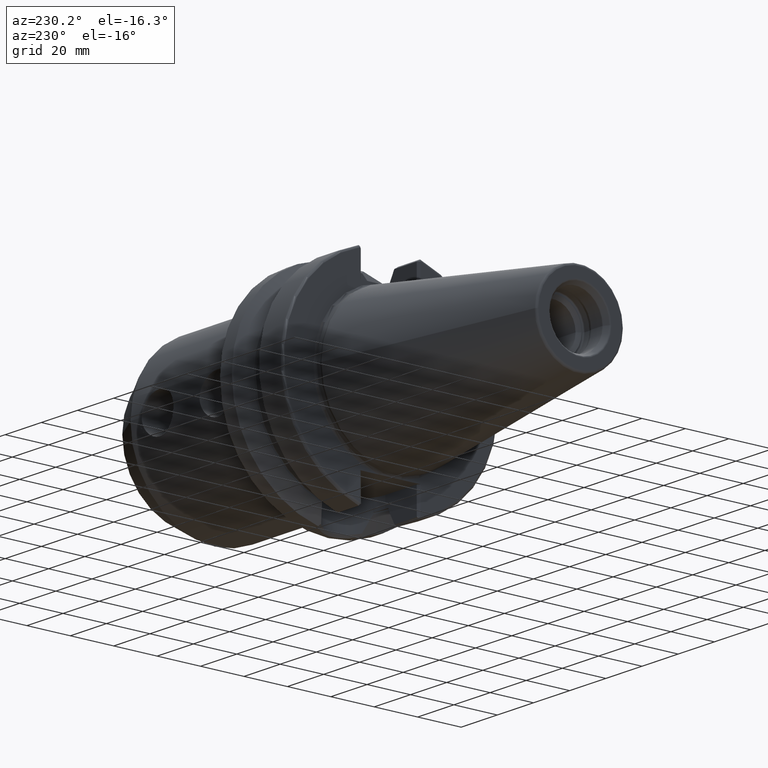
[diagram: clean part render]
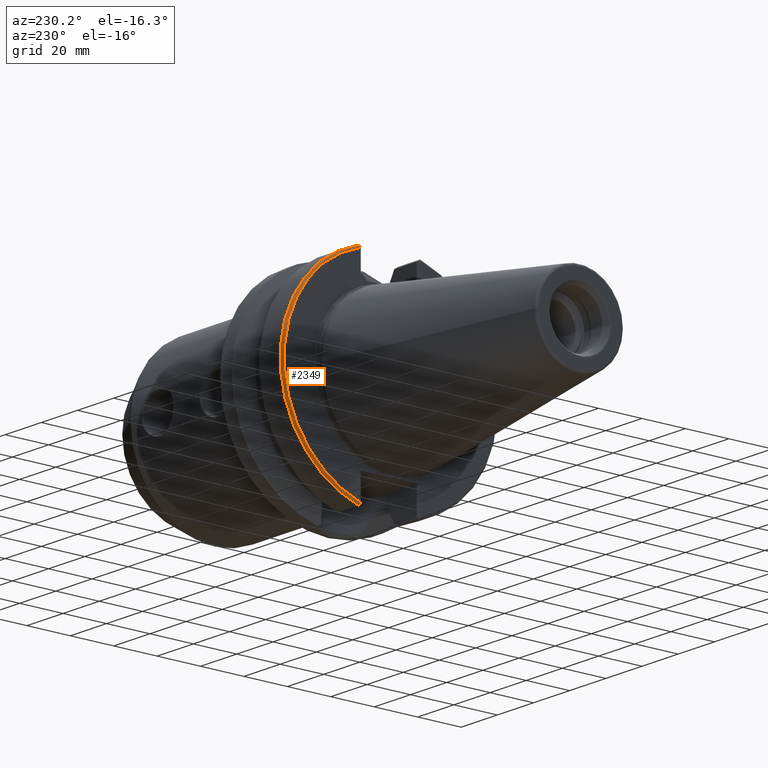
[diagram: same view with one face highlighted and labeled with its STEP entity id]
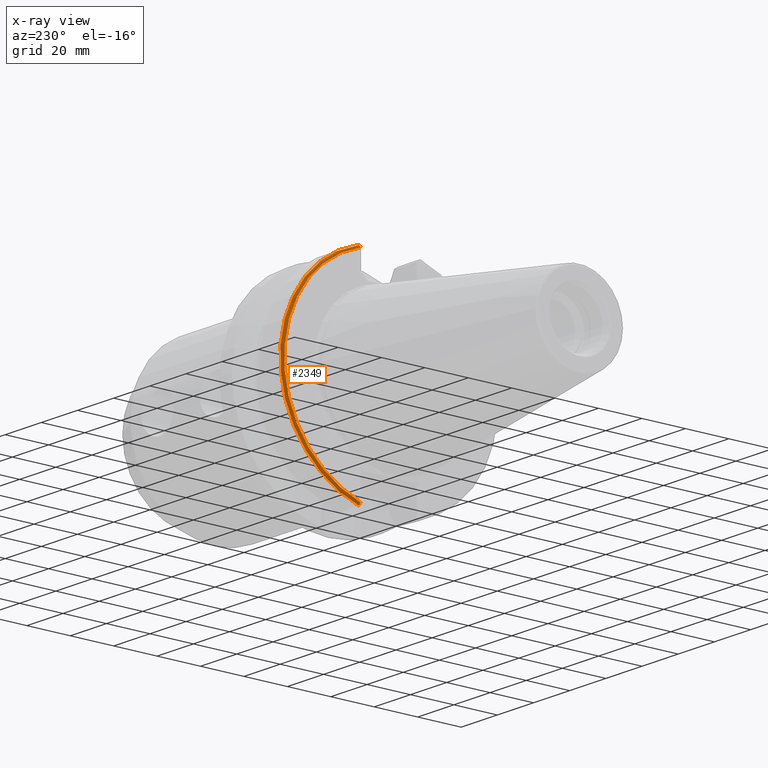
[diagram: x-ray of the same camera — body ghosted, the highlighted face saturated]
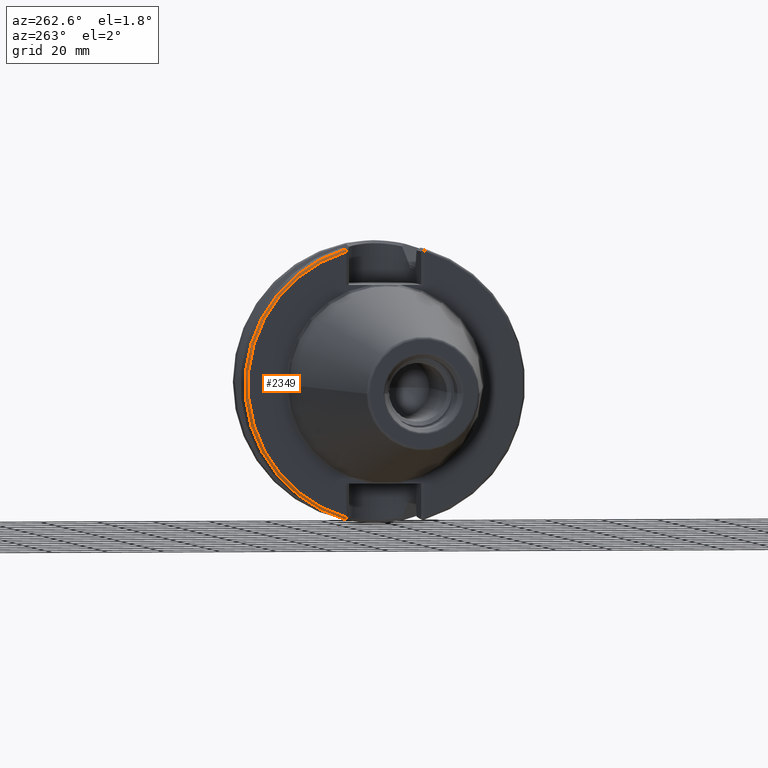
[diagram: same view with one face highlighted and labeled with its STEP entity id]
A machine part, auxiliary view. The second image highlights one B-rep face of the part: STEP entity #2349.
The next image is the same camera in x-ray: the body ghosted, the highlighted face saturated — about 0% of this face is hidden behind the body in this view.
A second angle (auxiliary view) of the same face is appended — the face is thin or edge-on in the first view.
In plain terms, the highlighted toroidal blend (fillet) surface has major radius 48.9875 mm and minor (blend) radius 1 mm.
Its self-contained STEP definition (entity closure, byte-faithful):
#227=CARTESIAN_POINT('',(4.E0,0.E0,0.E0));
#228=DIRECTION('',(-1.E0,0.E0,0.E0));
#229=DIRECTION('',(0.E0,2.837968869610E-1,9.588844179312E-1));
#230=AXIS2_PLACEMENT_3D('',#227,#228,#229);
#571=CARTESIAN_POINT('',(3.999999999701E0,1.386327248661E1,-4.802665840350E1));
#572=CARTESIAN_POINT('',(3.940459880706E0,1.386328759388E1,-4.802665404266E1));
#573=CARTESIAN_POINT('',(3.818524379244E0,1.386408249541E1,-4.801536526032E1));
#574=CARTESIAN_POINT('',(3.632802361895E0,1.386813157488E1,-4.795971866684E1));
#575=CARTESIAN_POINT('',(3.454761225176E0,1.387449273833E1,-4.786347597167E1));
#576=CARTESIAN_POINT('',(3.294931333912E0,1.388240594639E1,-4.772857875800E1));
#577=CARTESIAN_POINT('',(3.162899754239E0,1.389052093324E1,-4.756045881447E1));
#578=CARTESIAN_POINT('',(3.066796699794E0,1.389728433203E1,-4.736907635249E1));
#579=CARTESIAN_POINT('',(3.011034865800E0,1.390161469890E1,-4.716733990672E1));
#580=CARTESIAN_POINT('',(2.999993172884E0,1.390258355640E1,-4.703686424349E1));
#581=CARTESIAN_POINT('',(2.999993172884E0,1.390249317248E1,-4.697335004621E1));
#583=CARTESIAN_POINT('',(4.E0,1.390251954399E1,4.697334463905E1));
#584=DIRECTION('',(0.E0,9.588842998530E-1,-2.837972859196E-1));
#585=DIRECTION('',(-1.E0,-1.200817223435E-12,-4.057199021190E-12));
#586=AXIS2_PLACEMENT_3D('',#583,#584,#585);
#588=CARTESIAN_POINT('',(3.E0,0.E0,0.E0));
#589=DIRECTION('',(-1.E0,0.E0,0.E0));
#590=DIRECTION('',(0.E0,2.837969049058E-1,9.588844126201E-1));
#591=AXIS2_PLACEMENT_3D('',#588,#589,#590);
#1612=CARTESIAN_POINT('',(3.E0,1.390251954398E1,4.697334463905E1));
#1613=CARTESIAN_POINT('',(4.E0,1.418631682991E1,4.793222893890E1));
#1614=VERTEX_POINT('',#1612);
#1615=VERTEX_POINT('',#1613);
#1626=CARTESIAN_POINT('',(2.999993172884E0,1.390249317248E1,-4.697335004621E1));
#1628=VERTEX_POINT('',#1626);
#1630=VERTEX_POINT('',#571);
#2336=CARTESIAN_POINT('',(4.E0,0.E0,0.E0));
#2337=DIRECTION('',(1.E0,0.E0,0.E0));
#2338=DIRECTION('',(0.E0,-1.E0,0.E0));
#2339=AXIS2_PLACEMENT_3D('',#2336,#2337,#2338);
#2340=TOROIDAL_SURFACE('',#2339,4.89875E1,1.E0);
#2342=ORIENTED_EDGE('',*,*,#2341,.F.);
#2343=ORIENTED_EDGE('',*,*,#2014,.F.);
#2345=ORIENTED_EDGE('',*,*,#2344,.F.);
#2346=ORIENTED_EDGE('',*,*,#1851,.T.);
#2347=EDGE_LOOP('',(#2342,#2343,#2345,#2346));
#2348=FACE_OUTER_BOUND('',#2347,.F.);
#2349=ADVANCED_FACE('',(#2348),#2340,.T.);
#231=CIRCLE('',#230,4.99875E1);
#582=B_SPLINE_CURVE_WITH_KNOTS('',3,(#571,#572,#573,#574,#575,#576,#577,#578,
#579,#580,#581),.UNSPECIFIED.,.F.,.F.,(4,1,1,1,1,1,1,1,4),(0.E0,1.25E-1,2.5E-1,
3.75E-1,5.E-1,6.25E-1,7.5E-1,8.75E-1,1.E0),.UNSPECIFIED.);
#587=CIRCLE('',#586,1.E0);
#592=CIRCLE('',#591,4.89875E1);
#1851=EDGE_CURVE('',#1614,#1628,#592,.T.);
#2014=EDGE_CURVE('',#1615,#1630,#231,.T.);
#2341=EDGE_CURVE('',#1630,#1628,#582,.T.);
#2344=EDGE_CURVE('',#1614,#1615,#587,.T.);